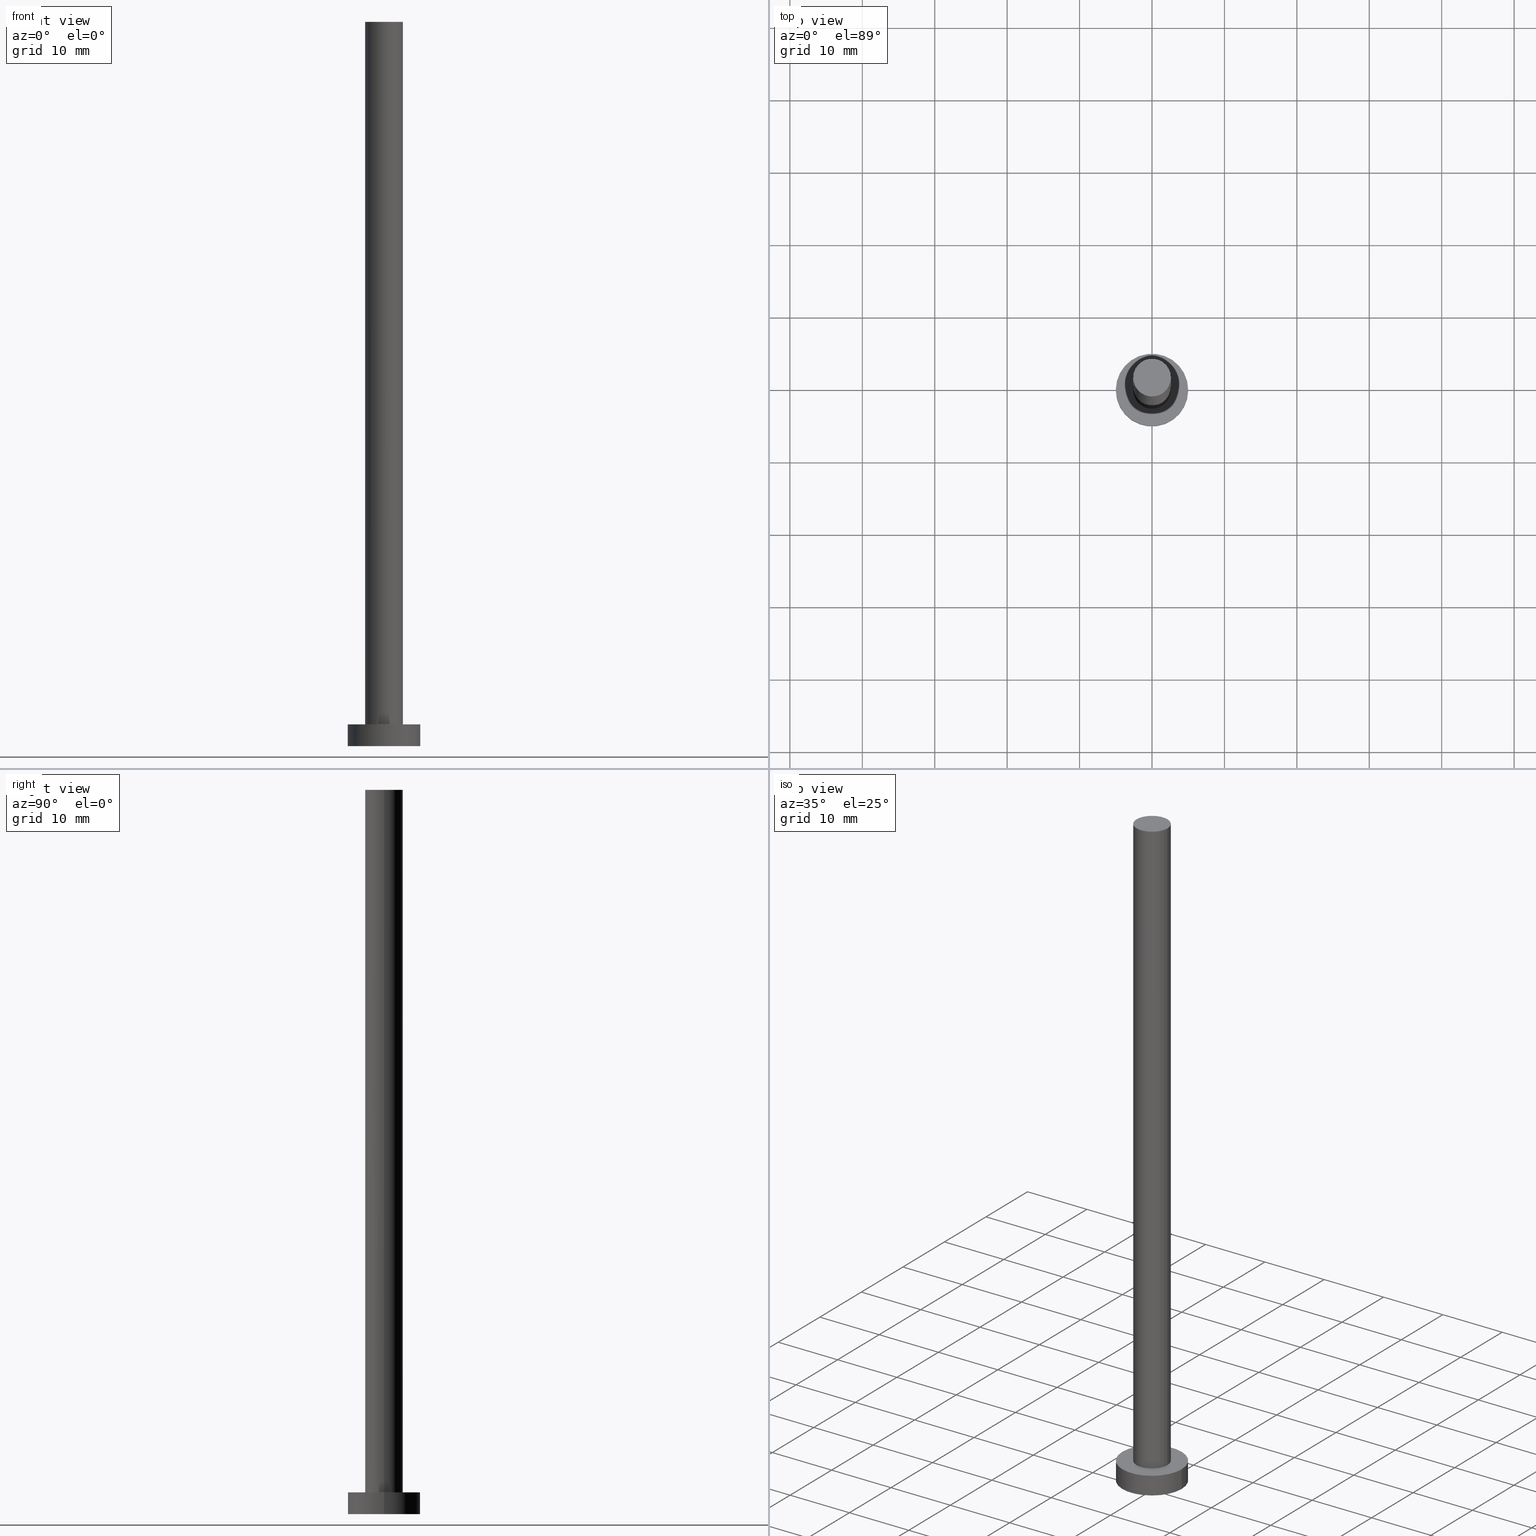
[diagram: canonical four-view strip — front | top / right | iso, engineering-drawing reading convention]
A machine part, canonical four-view strip (front | top / right | iso — engineering-drawing reading convention). The complete STEP part file that produces these views, byte-faithful:
ISO-10303-21;
HEADER;
FILE_DESCRIPTION (( 'STEP AP203' ),
    '1' );
FILE_NAME ('cb40.STEP',
    '2023-02-13T13:25:19',
    ( '' ),
    ( '' ),
    'SwSTEP 2.0',
    'SolidWorks 2019',
    '' );
FILE_SCHEMA (( 'CONFIG_CONTROL_DESIGN' ));
ENDSEC;

DATA;
#1 = ORIENTED_EDGE ( 'NONE', *, *, #65, .F. ) ;
#2 = CARTESIAN_POINT ( 'NONE',  ( 0.000000000000000000, 0.000000000000000000, 100.0000000000000000 ) ) ;
#3 = EDGE_LOOP ( 'NONE', ( #1, #211 ) ) ;
#4 = ADVANCED_FACE ( 'NONE', ( #81 ), #160, .T. ) ;
#5 = ORIENTED_EDGE ( 'NONE', *, *, #153, .F. ) ;
#6 = VECTOR ( 'NONE', #206, 1000.000000000000000 ) ;
#7 = AXIS2_PLACEMENT_3D ( 'NONE', #106, #243, #221 ) ;
#8 = DIRECTION ( 'NONE',  ( 0.000000000000000000, 0.000000000000000000, 1.000000000000000000 ) ) ;
#9 = CYLINDRICAL_SURFACE ( 'NONE', #138, 5.000000000000000000 ) ;
#10 = DIRECTION ( 'NONE',  ( 1.000000000000000000, 0.000000000000000000, 0.000000000000000000 ) ) ;
#11 = DATE_AND_TIME ( #245, #171 ) ;
#12 = PERSON_AND_ORGANIZATION ( #28, #237 ) ;
#13 = APPROVAL_ROLE ( '' ) ;
#14 = EDGE_LOOP ( 'NONE', ( #21, #96, #19, #180 ) ) ;
#15 = CALENDAR_DATE ( 2023, 13, 2 ) ;
#16 = MANIFOLD_SOLID_BREP ( 'P�idat vysunut�m3', #62 ) ;
#17 = LINE ( 'NONE', #42, #242 ) ;
#18 = ORIENTED_EDGE ( 'NONE', *, *, #65, .T. ) ;
#19 = ORIENTED_EDGE ( 'NONE', *, *, #164, .T. ) ;
#20 = CC_DESIGN_APPROVAL ( #99, ( #162 ) ) ;
#21 = ORIENTED_EDGE ( 'NONE', *, *, #198, .F. ) ;
#22 = DIRECTION ( 'NONE',  ( -1.000000000000000000, 0.000000000000000000, 0.000000000000000000 ) ) ;
#23 = LOCAL_TIME ( 14, 25, 19.00000000000000000, #227 ) ;
#24 = LINE ( 'NONE', #244, #97 ) ;
#25 = DIRECTION ( 'NONE',  ( 0.000000000000000000, 0.000000000000000000, 1.000000000000000000 ) ) ;
#26 = CARTESIAN_POINT ( 'NONE',  ( -2.600000000000000089, 0.000000000000000000, 100.0000000000000000 ) ) ;
#27 = LOCAL_TIME ( 14, 25, 19.00000000000000000, #230 ) ;
#28 = PERSON ( 'NEUR�EN�', 'NEUR�EN�', 'NEUR�EN�', ('NEUR�EN�'), ('NEUR�EN�'), ('NEUR�EN�') ) ;
#29 = APPROVAL_STATUS ( 'not_yet_approved' ) ;
#30 = PERSON_AND_ORGANIZATION ( #28, #237 ) ;
#31 = APPROVAL_STATUS ( 'not_yet_approved' ) ;
#32 = APPROVAL ( #29, 'NEUR�EN�' ) ;
#33 = CC_DESIGN_SECURITY_CLASSIFICATION ( #166, ( #162 ) ) ;
#34 = ORIENTED_EDGE ( 'NONE', *, *, #207, .T. ) ;
#35 = PRODUCT_DEFINITION ( 'NEZN�M�', '', #162, #61 ) ;
#36 = ORIENTED_EDGE ( 'NONE', *, *, #80, .F. ) ;
#37 = CIRCLE ( 'NONE', #134, 5.000000000000000000 ) ;
#38 = CARTESIAN_POINT ( 'NONE',  ( 0.000000000000000000, 0.000000000000000000, 0.000000000000000000 ) ) ;
#39 = CARTESIAN_POINT ( 'NONE',  ( 0.000000000000000000, 0.000000000000000000, 3.000000000000000000 ) ) ;
#40 = CARTESIAN_POINT ( 'NONE',  ( 0.000000000000000000, 0.000000000000000000, 3.000000000000000000 ) ) ;
#41 = EDGE_CURVE ( 'NONE', #178, #197, #236, .T. ) ;
#42 = CARTESIAN_POINT ( 'NONE',  ( 2.600000000000000089, 3.184081677783117698E-16, 100.0000000000000000 ) ) ;
#43 = CARTESIAN_POINT ( 'NONE',  ( -5.000000000000000000, 0.000000000000000000, 3.000000000000000000 ) ) ;
#44 = CARTESIAN_POINT ( 'NONE',  ( 5.000000000000000000, 6.123233995736766282E-16, 3.000000000000000000 ) ) ;
#45 = CC_DESIGN_APPROVAL ( #112, ( #166 ) ) ;
#46 = DIRECTION ( 'NONE',  ( 1.000000000000000000, 0.000000000000000000, 0.000000000000000000 ) ) ;
#47 =( LENGTH_UNIT ( ) NAMED_UNIT ( * ) SI_UNIT ( .MILLI., .METRE. ) );
#48 = EDGE_CURVE ( 'NONE', #192, #75, #183, .T. ) ;
#49 = PERSON_AND_ORGANIZATION ( #28, #237 ) ;
#50 = DATE_AND_TIME ( #87, #188 ) ;
#51 = PRODUCT_RELATED_PRODUCT_CATEGORY ( 'detail', '', ( #185 ) ) ;
#52 = DATE_AND_TIME ( #151, #27 ) ;
#53 = DIRECTION ( 'NONE',  ( 0.000000000000000000, 0.000000000000000000, 1.000000000000000000 ) ) ;
#54 = CARTESIAN_POINT ( 'NONE',  ( 0.000000000000000000, 0.000000000000000000, 100.0000000000000000 ) ) ;
#55 = DIRECTION ( 'NONE',  ( 1.000000000000000000, 0.000000000000000000, -0.000000000000000000 ) ) ;
#56 = DIRECTION ( 'NONE',  ( 1.000000000000000000, 0.000000000000000000, 0.000000000000000000 ) ) ;
#57 = UNCERTAINTY_MEASURE_WITH_UNIT (LENGTH_MEASURE( 1.000000000000000082E-05 ), #47, 'distance_accuracy_value', 'NONE');
#58 = ORIENTED_EDGE ( 'NONE', *, *, #191, .F. ) ;
#59 = PLANE ( 'NONE',  #71 ) ;
#60 = CARTESIAN_POINT ( 'NONE',  ( 0.000000000000000000, 0.000000000000000000, 0.000000000000000000 ) ) ;
#61 = DESIGN_CONTEXT ( 'detailed design', #229, 'design' ) ;
#62 = CLOSED_SHELL ( 'NONE', ( #4, #174, #119, #74, #212, #235, #95 ) ) ;
#63 = APPROVAL_PERSON_ORGANIZATION ( #30, #32, #13 ) ;
#64 = DIRECTION ( 'NONE',  ( -0.000000000000000000, -0.000000000000000000, -1.000000000000000000 ) ) ;
#65 = EDGE_CURVE ( 'NONE', #78, #92, #241, .T. ) ;
#66 = LINE ( 'NONE', #187, #116 ) ;
#67 = ADVANCED_BREP_SHAPE_REPRESENTATION ( 'cb40', ( #16, #103 ), #232 ) ;
#68 = APPROVAL_ROLE ( '' ) ;
#69 = PERSON_AND_ORGANIZATION ( #28, #237 ) ;
#70 = CIRCLE ( 'NONE', #102, 5.000000000000000000 ) ;
#71 = AXIS2_PLACEMENT_3D ( 'NONE', #83, #124, #225 ) ;
#72 = CC_DESIGN_DATE_AND_TIME_ASSIGNMENT ( #169, #249, ( #166 ) ) ;
#73 = APPROVAL_DATE_TIME ( #52, #32 ) ;
#74 = ADVANCED_FACE ( 'NONE', ( #239, #140 ), #217, .T. ) ;
#75 = VERTEX_POINT ( 'NONE', #94 ) ;
#76 = DIRECTION ( 'NONE',  ( 1.000000000000000000, 0.000000000000000000, -0.000000000000000000 ) ) ;
#77 = EDGE_LOOP ( 'NONE', ( #201, #136 ) ) ;
#78 = VERTEX_POINT ( 'NONE', #254 ) ;
#79 = ORIENTED_EDGE ( 'NONE', *, *, #191, .T. ) ;
#80 = EDGE_CURVE ( 'NONE', #75, #90, #17, .T. ) ;
#81 = FACE_OUTER_BOUND ( 'NONE', #240, .T. ) ;
#82 = CARTESIAN_POINT ( 'NONE',  ( 0.000000000000000000, 0.000000000000000000, 3.000000000000000000 ) ) ;
#83 = CARTESIAN_POINT ( 'NONE',  ( 0.000000000000000000, 0.000000000000000000, 0.000000000000000000 ) ) ;
#84 = CARTESIAN_POINT ( 'NONE',  ( 0.000000000000000000, 0.000000000000000000, 0.000000000000000000 ) ) ;
#85 = CIRCLE ( 'NONE', #204, 2.600000000000000089 ) ;
#86 = DIRECTION ( 'NONE',  ( -0.000000000000000000, -0.000000000000000000, -1.000000000000000000 ) ) ;
#87 = CALENDAR_DATE ( 2023, 13, 2 ) ;
#88 = CC_DESIGN_PERSON_AND_ORGANIZATION_ASSIGNMENT ( #252, #194, ( #166 ) ) ;
#89 = CALENDAR_DATE ( 2023, 13, 2 ) ;
#90 = VERTEX_POINT ( 'NONE', #118 ) ;
#91 = COORDINATED_UNIVERSAL_TIME_OFFSET ( 1, 0, .AHEAD. ) ;
#92 = VERTEX_POINT ( 'NONE', #155 ) ;
#93 = EDGE_LOOP ( 'NONE', ( #156, #196 ) ) ;
#94 = CARTESIAN_POINT ( 'NONE',  ( 2.600000000000000089, 3.184081677783117698E-16, 100.0000000000000000 ) ) ;
#95 = ADVANCED_FACE ( 'NONE', ( #159 ), #234, .T. ) ;
#96 = ORIENTED_EDGE ( 'NONE', *, *, #153, .T. ) ;
#97 = VECTOR ( 'NONE', #86, 1000.000000000000000 ) ;
#98 = DIRECTION ( 'NONE',  ( -0.000000000000000000, -0.000000000000000000, -1.000000000000000000 ) ) ;
#99 = APPROVAL ( #31, 'NEUR�EN�' ) ;
#100 = ORIENTED_EDGE ( 'NONE', *, *, #80, .T. ) ;
#101 = CARTESIAN_POINT ( 'NONE',  ( 0.000000000000000000, 0.000000000000000000, 100.0000000000000000 ) ) ;
#102 = AXIS2_PLACEMENT_3D ( 'NONE', #60, #120, #202 ) ;
#103 = AXIS2_PLACEMENT_3D ( 'NONE', #84, #165, #130 ) ;
#104 = FACE_OUTER_BOUND ( 'NONE', #110, .T. ) ;
#105 = DIRECTION ( 'NONE',  ( -1.000000000000000000, 0.000000000000000000, 0.000000000000000000 ) ) ;
#106 = CARTESIAN_POINT ( 'NONE',  ( 0.000000000000000000, 0.000000000000000000, 100.0000000000000000 ) ) ;
#107 = COORDINATED_UNIVERSAL_TIME_OFFSET ( 1, 0, .AHEAD. ) ;
#108 = SECURITY_CLASSIFICATION_LEVEL ( 'unclassified' ) ;
#109 = PERSON_AND_ORGANIZATION_ROLE ( 'design_supplier' ) ;
#110 = EDGE_LOOP ( 'NONE', ( #36, #233, #158, #199 ) ) ;
#111 = DIRECTION ( 'NONE',  ( 0.000000000000000000, 0.000000000000000000, 1.000000000000000000 ) ) ;
#112 = APPROVAL ( #205, 'NEUR�EN�' ) ;
#113 = CYLINDRICAL_SURFACE ( 'NONE', #231, 5.000000000000000000 ) ;
#114 = DIRECTION ( 'NONE',  ( -0.000000000000000000, -0.000000000000000000, -1.000000000000000000 ) ) ;
#115 = ORIENTED_EDGE ( 'NONE', *, *, #41, .F. ) ;
#116 = VECTOR ( 'NONE', #147, 1000.000000000000000 ) ;
#117 = APPROVAL_PERSON_ORGANIZATION ( #12, #112, #247 ) ;
#118 = CARTESIAN_POINT ( 'NONE',  ( 2.600000000000000089, 3.184081677783117698E-16, 3.000000000000000000 ) ) ;
#119 = ADVANCED_FACE ( 'NONE', ( #215 ), #113, .T. ) ;
#120 = DIRECTION ( 'NONE',  ( 0.000000000000000000, 0.000000000000000000, 1.000000000000000000 ) ) ;
#121 = CYLINDRICAL_SURFACE ( 'NONE', #214, 2.600000000000000089 ) ;
#122 = CIRCLE ( 'NONE', #7, 2.600000000000000089 ) ;
#123 = EDGE_CURVE ( 'NONE', #192, #253, #127, .T. ) ;
#124 = DIRECTION ( 'NONE',  ( 0.000000000000000000, 0.000000000000000000, 1.000000000000000000 ) ) ;
#125 = PRODUCT_DEFINITION_SHAPE ( 'NONE', 'NONE',  #35 ) ;
#126 = APPROVAL_DATE_TIME ( #11, #112 ) ;
#127 = LINE ( 'NONE', #26, #6 ) ;
#128 =( NAMED_UNIT ( * ) PLANE_ANGLE_UNIT ( ) SI_UNIT ( $, .RADIAN. ) );
#129 = AXIS2_PLACEMENT_3D ( 'NONE', #139, #98, #216 ) ;
#130 = DIRECTION ( 'NONE',  ( 1.000000000000000000, 0.000000000000000000, 0.000000000000000000 ) ) ;
#131 = PERSON_AND_ORGANIZATION ( #28, #237 ) ;
#132 = PERSON_AND_ORGANIZATION_ROLE ( 'creator' ) ;
#133 = AXIS2_PLACEMENT_3D ( 'NONE', #54, #177, #55 ) ;
#134 = AXIS2_PLACEMENT_3D ( 'NONE', #182, #25, #10 ) ;
#135 = EDGE_LOOP ( 'NONE', ( #5, #115, #34, #18 ) ) ;
#136 = ORIENTED_EDGE ( 'NONE', *, *, #168, .T. ) ;
#137 = DIRECTION ( 'NONE',  ( 0.000000000000000000, 0.000000000000000000, 1.000000000000000000 ) ) ;
#138 = AXIS2_PLACEMENT_3D ( 'NONE', #163, #64, #222 ) ;
#139 = CARTESIAN_POINT ( 'NONE',  ( 0.000000000000000000, 0.000000000000000000, 100.0000000000000000 ) ) ;
#140 = FACE_OUTER_BOUND ( 'NONE', #93, .T. ) ;
#141 = ORIENTED_EDGE ( 'NONE', *, *, #255, .F. ) ;
#142 = AXIS2_PLACEMENT_3D ( 'NONE', #40, #111, #76 ) ;
#143 =( NAMED_UNIT ( * ) SI_UNIT ( $, .STERADIAN. ) SOLID_ANGLE_UNIT ( ) );
#144 = CARTESIAN_POINT ( 'NONE',  ( 0.000000000000000000, 0.000000000000000000, 3.000000000000000000 ) ) ;
#145 = CC_DESIGN_PERSON_AND_ORGANIZATION_ASSIGNMENT ( #152, #208, ( #185 ) ) ;
#146 = CARTESIAN_POINT ( 'NONE',  ( -2.600000000000000089, 0.000000000000000000, 100.0000000000000000 ) ) ;
#147 = DIRECTION ( 'NONE',  ( -0.000000000000000000, -0.000000000000000000, -1.000000000000000000 ) ) ;
#148 = DIRECTION ( 'NONE',  ( -0.000000000000000000, -0.000000000000000000, -1.000000000000000000 ) ) ;
#149 = CC_DESIGN_PERSON_AND_ORGANIZATION_ASSIGNMENT ( #69, #132, ( #35 ) ) ;
#150 = PERSON_AND_ORGANIZATION_ROLE ( 'creator' ) ;
#151 = CALENDAR_DATE ( 2023, 13, 2 ) ;
#152 = PERSON_AND_ORGANIZATION ( #28, #237 ) ;
#153 = EDGE_CURVE ( 'NONE', #197, #92, #66, .T. ) ;
#154 = ORIENTED_EDGE ( 'NONE', *, *, #123, .F. ) ;
#155 = CARTESIAN_POINT ( 'NONE',  ( 5.000000000000000000, 6.123233995736766282E-16, 0.000000000000000000 ) ) ;
#156 = ORIENTED_EDGE ( 'NONE', *, *, #41, .T. ) ;
#157 = APPROVAL_PERSON_ORGANIZATION ( #172, #99, #68 ) ;
#158 = ORIENTED_EDGE ( 'NONE', *, *, #123, .T. ) ;
#159 = FACE_OUTER_BOUND ( 'NONE', #77, .T. ) ;
#160 = CYLINDRICAL_SURFACE ( 'NONE', #129, 2.600000000000000089 ) ;
#161 = AXIS2_PLACEMENT_3D ( 'NONE', #2, #137, #195 ) ;
#162 = PRODUCT_DEFINITION_FORMATION_WITH_SPECIFIED_SOURCE ( 'LIBOVOLN�', '', #185, .NOT_KNOWN. ) ;
#163 = CARTESIAN_POINT ( 'NONE',  ( 0.000000000000000000, 0.000000000000000000, 3.000000000000000000 ) ) ;
#164 = EDGE_CURVE ( 'NONE', #92, #78, #70, .T. ) ;
#165 = DIRECTION ( 'NONE',  ( 0.000000000000000000, 0.000000000000000000, 1.000000000000000000 ) ) ;
#166 = SECURITY_CLASSIFICATION ( '', '', #108 ) ;
#167 = DIRECTION ( 'NONE',  ( 0.000000000000000000, 0.000000000000000000, 1.000000000000000000 ) ) ;
#168 = EDGE_CURVE ( 'NONE', #75, #192, #122, .T. ) ;
#169 = DATE_AND_TIME ( #15, #23 ) ;
#170 = MECHANICAL_CONTEXT ( 'NONE', #190, 'mechanical' ) ;
#171 = LOCAL_TIME ( 14, 25, 19.00000000000000000, #220 ) ;
#172 = PERSON_AND_ORGANIZATION ( #28, #237 ) ;
#173 = ORIENTED_EDGE ( 'NONE', *, *, #168, .F. ) ;
#174 = ADVANCED_FACE ( 'NONE', ( #186 ), #9, .T. ) ;
#175 = AXIS2_PLACEMENT_3D ( 'NONE', #38, #218, #213 ) ;
#176 = CARTESIAN_POINT ( 'NONE',  ( 0.000000000000000000, 0.000000000000000000, 3.000000000000000000 ) ) ;
#177 = DIRECTION ( 'NONE',  ( 0.000000000000000000, 0.000000000000000000, 1.000000000000000000 ) ) ;
#178 = VERTEX_POINT ( 'NONE', #43 ) ;
#179 = CC_DESIGN_PERSON_AND_ORGANIZATION_ASSIGNMENT ( #49, #150, ( #162 ) ) ;
#180 = ORIENTED_EDGE ( 'NONE', *, *, #207, .F. ) ;
#181 = EDGE_LOOP ( 'NONE', ( #141, #58 ) ) ;
#182 = CARTESIAN_POINT ( 'NONE',  ( 0.000000000000000000, 0.000000000000000000, 3.000000000000000000 ) ) ;
#183 = CIRCLE ( 'NONE', #161, 2.600000000000000089 ) ;
#184 = AXIS2_PLACEMENT_3D ( 'NONE', #82, #167, #46 ) ;
#185 = PRODUCT ( 'cb40', 'cb40', '', ( #170 ) ) ;
#186 = FACE_OUTER_BOUND ( 'NONE', #14, .T. ) ;
#187 = CARTESIAN_POINT ( 'NONE',  ( 5.000000000000000000, 6.123233995736766282E-16, 3.000000000000000000 ) ) ;
#188 = LOCAL_TIME ( 14, 25, 19.00000000000000000, #91 ) ;
#189 = APPROVAL_DATE_TIME ( #50, #99 ) ;
#190 = APPLICATION_CONTEXT ( 'configuration controlled 3d designs of mechanical parts and assemblies' ) ;
#191 = EDGE_CURVE ( 'NONE', #90, #253, #200, .T. ) ;
#192 = VERTEX_POINT ( 'NONE', #146 ) ;
#193 = AXIS2_PLACEMENT_3D ( 'NONE', #176, #53, #56 ) ;
#194 = PERSON_AND_ORGANIZATION_ROLE ( 'classification_officer' ) ;
#195 = DIRECTION ( 'NONE',  ( 1.000000000000000000, 0.000000000000000000, 0.000000000000000000 ) ) ;
#196 = ORIENTED_EDGE ( 'NONE', *, *, #198, .T. ) ;
#197 = VERTEX_POINT ( 'NONE', #44 ) ;
#198 = EDGE_CURVE ( 'NONE', #197, #178, #37, .T. ) ;
#199 = ORIENTED_EDGE ( 'NONE', *, *, #255, .T. ) ;
#200 = CIRCLE ( 'NONE', #184, 2.600000000000000089 ) ;
#201 = ORIENTED_EDGE ( 'NONE', *, *, #48, .T. ) ;
#202 = DIRECTION ( 'NONE',  ( 1.000000000000000000, 0.000000000000000000, 0.000000000000000000 ) ) ;
#203 = DIRECTION ( 'NONE',  ( 1.000000000000000000, 0.000000000000000000, 0.000000000000000000 ) ) ;
#204 = AXIS2_PLACEMENT_3D ( 'NONE', #144, #8, #203 ) ;
#205 = APPROVAL_STATUS ( 'not_yet_approved' ) ;
#206 = DIRECTION ( 'NONE',  ( -0.000000000000000000, -0.000000000000000000, -1.000000000000000000 ) ) ;
#207 = EDGE_CURVE ( 'NONE', #178, #78, #24, .T. ) ;
#208 = PERSON_AND_ORGANIZATION_ROLE ( 'design_owner' ) ;
#209 = DATE_AND_TIME ( #89, #251 ) ;
#210 = CC_DESIGN_APPROVAL ( #32, ( #35 ) ) ;
#211 = ORIENTED_EDGE ( 'NONE', *, *, #164, .F. ) ;
#212 = ADVANCED_FACE ( 'NONE', ( #248 ), #59, .F. ) ;
#213 = DIRECTION ( 'NONE',  ( 1.000000000000000000, 0.000000000000000000, 0.000000000000000000 ) ) ;
#214 = AXIS2_PLACEMENT_3D ( 'NONE', #101, #148, #22 ) ;
#215 = FACE_OUTER_BOUND ( 'NONE', #135, .T. ) ;
#216 = DIRECTION ( 'NONE',  ( -1.000000000000000000, 0.000000000000000000, 0.000000000000000000 ) ) ;
#217 = PLANE ( 'NONE',  #142 ) ;
#218 = DIRECTION ( 'NONE',  ( 0.000000000000000000, 0.000000000000000000, 1.000000000000000000 ) ) ;
#219 = CC_DESIGN_PERSON_AND_ORGANIZATION_ASSIGNMENT ( #131, #109, ( #162 ) ) ;
#220 = COORDINATED_UNIVERSAL_TIME_OFFSET ( 1, 0, .AHEAD. ) ;
#221 = DIRECTION ( 'NONE',  ( 1.000000000000000000, 0.000000000000000000, 0.000000000000000000 ) ) ;
#222 = DIRECTION ( 'NONE',  ( -1.000000000000000000, 0.000000000000000000, 0.000000000000000000 ) ) ;
#223 = SHAPE_DEFINITION_REPRESENTATION ( #125, #67 ) ;
#224 = CC_DESIGN_DATE_AND_TIME_ASSIGNMENT ( #209, #228, ( #35 ) ) ;
#225 = DIRECTION ( 'NONE',  ( 1.000000000000000000, 0.000000000000000000, -0.000000000000000000 ) ) ;
#226 = CARTESIAN_POINT ( 'NONE',  ( -2.600000000000000089, 0.000000000000000000, 3.000000000000000000 ) ) ;
#227 = COORDINATED_UNIVERSAL_TIME_OFFSET ( 1, 0, .AHEAD. ) ;
#228 = DATE_TIME_ROLE ( 'creation_date' ) ;
#229 = APPLICATION_CONTEXT ( 'configuration controlled 3d designs of mechanical parts and assemblies' ) ;
#230 = COORDINATED_UNIVERSAL_TIME_OFFSET ( 1, 0, .AHEAD. ) ;
#231 = AXIS2_PLACEMENT_3D ( 'NONE', #39, #114, #105 ) ;
#232 =( GEOMETRIC_REPRESENTATION_CONTEXT ( 3 ) GLOBAL_UNCERTAINTY_ASSIGNED_CONTEXT ( ( #57 ) ) GLOBAL_UNIT_ASSIGNED_CONTEXT ( ( #47, #128, #143 ) ) REPRESENTATION_CONTEXT ( 'NONE', 'WORKASPACE' ) );
#233 = ORIENTED_EDGE ( 'NONE', *, *, #48, .F. ) ;
#234 = PLANE ( 'NONE',  #133 ) ;
#235 = ADVANCED_FACE ( 'NONE', ( #104 ), #121, .T. ) ;
#236 = CIRCLE ( 'NONE', #193, 5.000000000000000000 ) ;
#237 = ORGANIZATION ( 'NEUR�EN�', 'NEUR�EN�', '' ) ;
#238 = DIRECTION ( 'NONE',  ( -0.000000000000000000, -0.000000000000000000, -1.000000000000000000 ) ) ;
#239 = FACE_BOUND ( 'NONE', #181, .T. ) ;
#240 = EDGE_LOOP ( 'NONE', ( #173, #100, #79, #154 ) ) ;
#241 = CIRCLE ( 'NONE', #175, 5.000000000000000000 ) ;
#242 = VECTOR ( 'NONE', #238, 1000.000000000000000 ) ;
#243 = DIRECTION ( 'NONE',  ( 0.000000000000000000, 0.000000000000000000, 1.000000000000000000 ) ) ;
#244 = CARTESIAN_POINT ( 'NONE',  ( -5.000000000000000000, 0.000000000000000000, 3.000000000000000000 ) ) ;
#245 = CALENDAR_DATE ( 2023, 13, 2 ) ;
#246 = APPLICATION_PROTOCOL_DEFINITION ( 'international standard', 'config_control_design', 1994, #190 ) ;
#247 = APPROVAL_ROLE ( '' ) ;
#248 = FACE_OUTER_BOUND ( 'NONE', #3, .T. ) ;
#249 = DATE_TIME_ROLE ( 'classification_date' ) ;
#250 = APPLICATION_PROTOCOL_DEFINITION ( 'international standard', 'config_control_design', 1994, #229 ) ;
#251 = LOCAL_TIME ( 14, 25, 19.00000000000000000, #107 ) ;
#252 = PERSON_AND_ORGANIZATION ( #28, #237 ) ;
#253 = VERTEX_POINT ( 'NONE', #226 ) ;
#254 = CARTESIAN_POINT ( 'NONE',  ( -5.000000000000000000, 0.000000000000000000, 0.000000000000000000 ) ) ;
#255 = EDGE_CURVE ( 'NONE', #253, #90, #85, .T. ) ;
ENDSEC;
END-ISO-10303-21;
